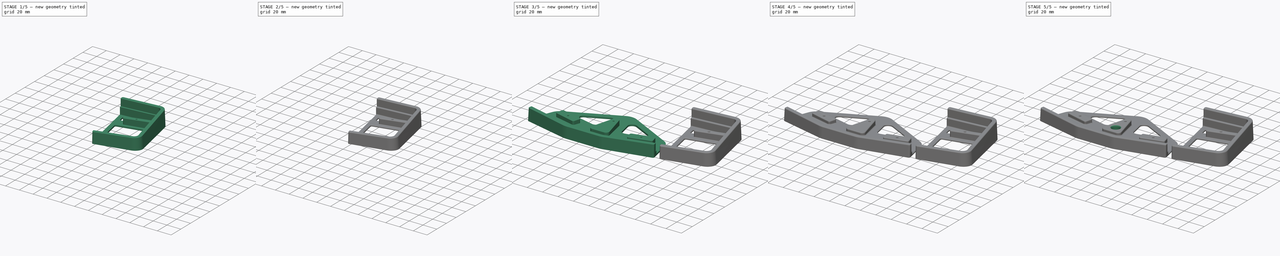
[diagram: build sequence overview — one tinted view per stage of 5, left to right]
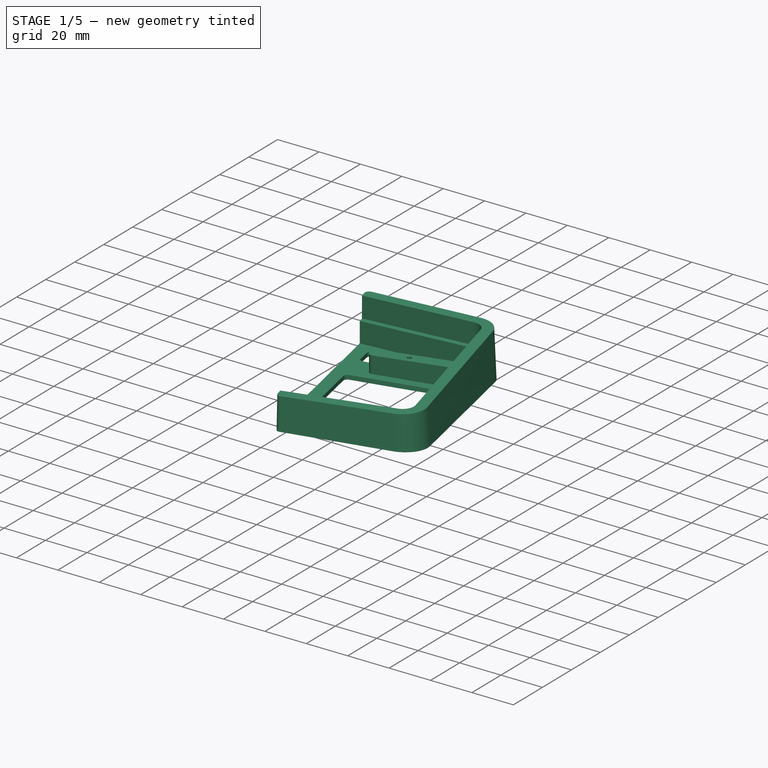
[diagram: stage 1 of 5 — iso view after this stage's code; geometry added in this stage tinted green]
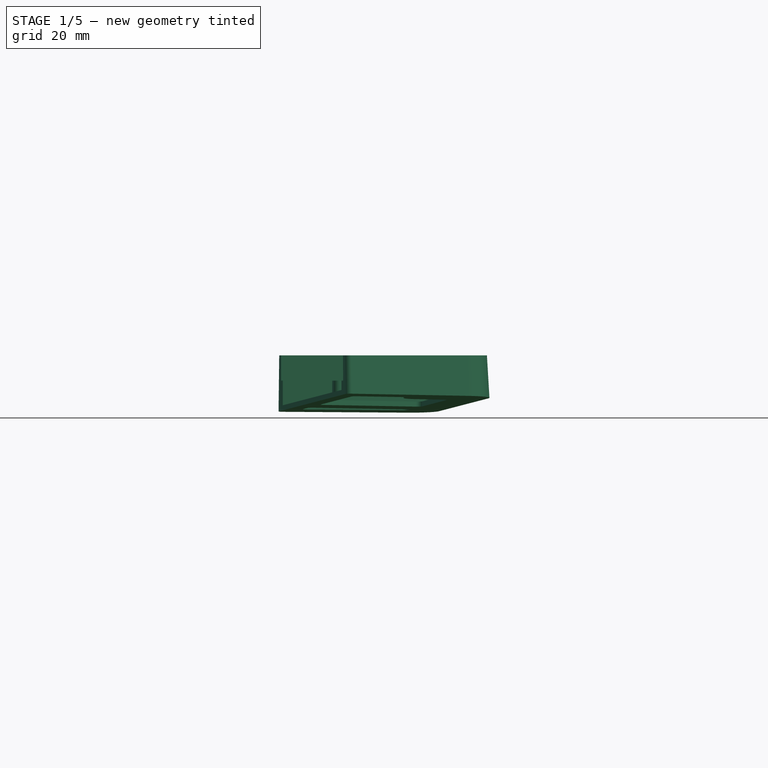
[diagram: stage 1 of 5 — front view after this stage's code; geometry added in this stage tinted green]
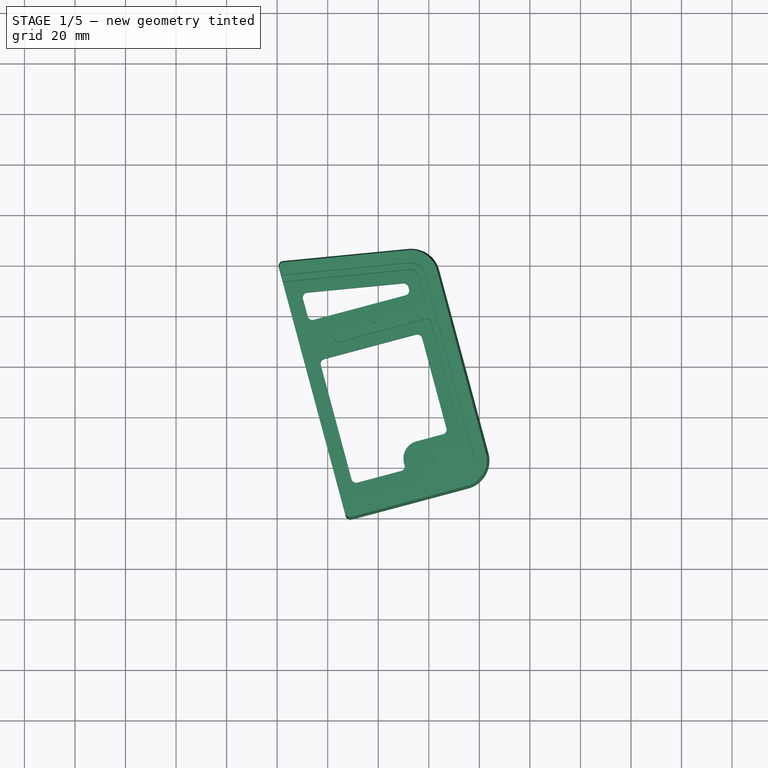
[diagram: stage 1 of 5 — top view after this stage's code; geometry added in this stage tinted green]
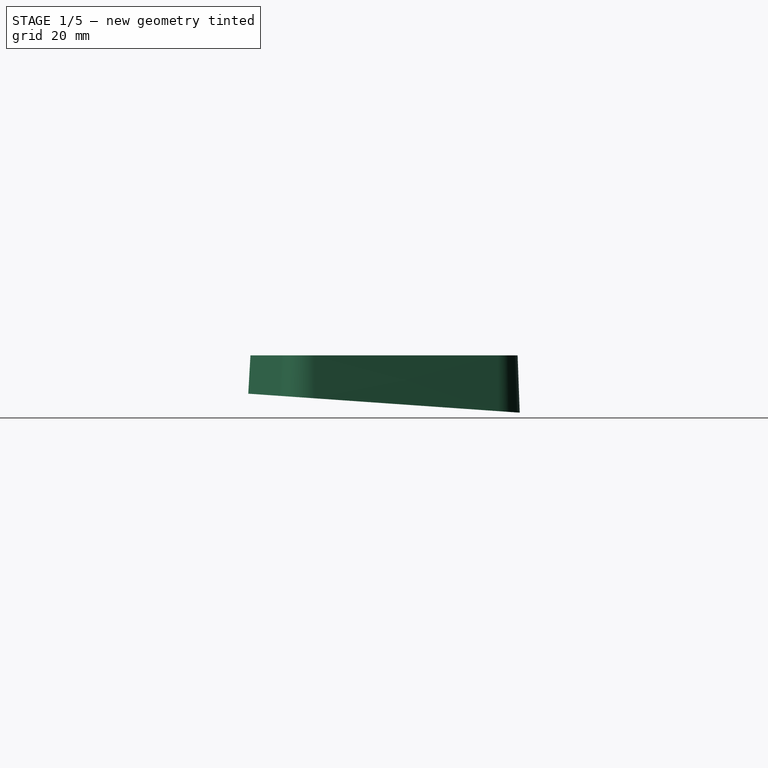
[diagram: stage 1 of 5 — right view after this stage's code; geometry added in this stage tinted green]
FCSTD DOCUMENT  (FreeCAD 0.20R)
Label: case.v6
License: All rights reserved
LicenseURL: http://en.wikipedia.org/wiki/All_rights_reserved
objects: Sketcher::SketchObject×14, PartDesign::Pocket×8, PartDesign::Fillet×7, PartDesign::AdditiveLoft×2, PartDesign::Hole×2, PartDesign::Chamfer×2, PartDesign::Body×2
note: 58 computed .brp shape members not serialized (recipe doc carries the construction recipe); baked Part::Feature solids carry a one-line shape summary decoded from their .brp

FEATURE [PartDesign::Body] Body  label="Body-in"
  Group = -> [Sketch,Sketch001,AdditiveLoft,Sketch002,Pocket,Sketch003,Pocket001,Sketch004,Pocket002,Fillet,Sketch005,Hole,Chamfer,Fillet001,Sketch006,Pocket003,Fillet002,Sketch007,Pocket004,Fillet003]
  Origin = -> Origin
  Placement = pos=(0,0,0) rot=(1,0,0;0.069813rad)
  Tip = -> Fillet003
FEATURE [Sketcher::SketchObject] Sketch008
  AttachmentOffset = pos=(0,0,0) rot=(1,0,0;-0.069813rad)
  FullyConstrained = false
  MapMode = 5
  Placement = pos=(0,0,0) rot=(1,0,0;6.21337rad)
  Support = -> [XY_Plane001]
  sketch-geometry (8):
    g0: LineSegment StartX=135.475 StartY=-28.2951 StartZ=0 EndX=89.5539 EndY=-40.5996 EndZ=0
    g1: ArcOfCircle CenterX=89.0363 CenterY=-38.6677 CenterZ=0 NormalX=0 NormalY=0 NormalZ=1 AngleXU=0 Radius=2 StartAngle=3.40339 EndAngle=4.97419
    g2: LineSegment StartX=60.6229 StartY=59.645 StartZ=0 EndX=87.1044 EndY=-39.1854 EndZ=0
    g3: LineSegment StartX=62.3618 StartY=62.1534 StartZ=0 EndX=111.909 EndY=66.9571 EndZ=0
    g4: ArcOfCircle CenterX=62.5548 CenterY=60.1627 CenterZ=0 NormalX=0 NormalY=0 NormalZ=1 AngleXU=0 Radius=2 StartAngle=1.66745 EndAngle=3.40339
    g5: ArcOfCircle CenterX=132.498 CenterY=-17.187 CenterZ=0 NormalX=0 NormalY=0 NormalZ=1 AngleXU=0 Radius=11.5 StartAngle=4.97419 EndAngle=6.54498
    g6: LineSegment StartX=124.127 StartY=58.4872 StartZ=0 EndX=143.606 EndY=-14.2106 EndZ=0
    g7: ArcOfCircle CenterX=113.019 CenterY=55.5108 CenterZ=0 NormalX=0 NormalY=0 NormalZ=1 AngleXU=0 Radius=11.5 StartAngle=0.261799 EndAngle=1.66745
  constraints (8):
    c: Coincident(g2,g4)
    c: Coincident(g3,g4)
    c: Coincident(g1,g2)
    c: Coincident(g0,g1)
    c: Coincident(g3,g7)
    c: Coincident(g6,g7)
    c: Coincident(g0,g5)
    c: Coincident(g5,g6)
FEATURE [Sketcher::SketchObject] Sketch009
  AttachmentOffset = pos=(0,0,18) rot=(0,0,1;0rad)
  FullyConstrained = false
  MapMode = 5
  Placement = pos=(0,0,18) rot=(0,0,1;0rad)
  Support = -> [XY_Plane001]
  sketch-geometry (8):
    g0: ArcOfCircle CenterX=113.019 CenterY=55.5108 CenterZ=0 NormalX=0 NormalY=0 NormalZ=1 AngleXU=0 Radius=10.5 StartAngle=0.261799 EndAngle=1.66745
    g1: LineSegment StartX=123.161 StartY=58.2284 StartZ=0 EndX=142.64 EndY=-14.4694 EndZ=0
    g2: ArcOfCircle CenterX=132.498 CenterY=-17.187 CenterZ=0 NormalX=0 NormalY=0 NormalZ=1 AngleXU=0 Radius=10.5 StartAngle=4.97419 EndAngle=6.54498
    g3: LineSegment StartX=62.6242 StartY=61.1741 StartZ=0 EndX=112.006 EndY=65.9618 EndZ=0
    g4: ArcOfCircle CenterX=62.8172 CenterY=59.1834 CenterZ=0 NormalX=0 NormalY=0 NormalZ=1 AngleXU=0 Radius=2 StartAngle=1.66745 EndAngle=3.40339
    g5: LineSegment StartX=135.216 StartY=-27.3292 StartZ=0 EndX=89.2951 EndY=-39.6336 EndZ=0
    g6: ArcOfCircle CenterX=88.7775 CenterY=-37.7018 CenterZ=0 NormalX=0 NormalY=0 NormalZ=1 AngleXU=0 Radius=2 StartAngle=3.40339 EndAngle=4.97419
    g7: LineSegment StartX=86.8456 StartY=-38.2194 StartZ=0 EndX=60.8853 EndY=58.6658 EndZ=0
FEATURE [PartDesign::AdditiveLoft] AdditiveLoft001
  Closed = true
  Profile = -> Sketch008
  Ruled = true
  Sections = -> [Sketch009]
FEATURE [Sketcher::SketchObject] Sketch010
  FullyConstrained = false
  MapMode = 5
  Placement = pos=(0,0,18) rot=(0,0,1;0rad)
  Support = -> [AdditiveLoft001]
  sketch-geometry (6):
    g0: ArcOfCircle CenterX=113.019 CenterY=55.5108 CenterZ=0 NormalX=0 NormalY=0 NormalZ=1 AngleXU=0 Radius=5.5 StartAngle=0.261799 EndAngle=1.66745
    g1: LineSegment StartX=118.332 StartY=56.9343 StartZ=0 EndX=137.811 EndY=-15.7635 EndZ=0
    g2: ArcOfCircle CenterX=132.498 CenterY=-17.187 CenterZ=0 NormalX=0 NormalY=0 NormalZ=1 AngleXU=0 Radius=5.5 StartAngle=4.97419 EndAngle=6.54498
    g3: LineSegment StartX=60.5771 StartY=55.9522 StartZ=0 EndX=112.488 EndY=60.9851 EndZ=0
    g4: LineSegment StartX=85.1032 StartY=-35.5805 StartZ=0 EndX=60.5771 EndY=55.9522 EndZ=0
    g5: LineSegment StartX=133.922 StartY=-22.4996 StartZ=0 EndX=85.1032 EndY=-35.5805 EndZ=0
  constraints (6):
    c: Coincident(g3,g4)
    c: Coincident(g4,g5)
    c: Coincident(g0,g3)
    c: Coincident(g0,g1)
    c: Coincident(g2,g5)
    c: Coincident(g1,g2)
FEATURE [PartDesign::Pocket] Pocket005
  BaseFeature = -> AdditiveLoft001
  Direction = (0,0,-1)
  Length = 10
  Length2 = 5
  Profile = -> Sketch010
  ReferenceAxis = -> Sketch010 [N_Axis]
  Type = 0
FEATURE [Sketcher::SketchObject] Sketch011
  FullyConstrained = false
  MapMode = 5
  Placement = pos=(0,0,8) rot=(0,0,1;0rad)
  Support = -> [Pocket005]
  sketch-geometry (20):
    g0: Circle CenterX=121.71 CenterY=-16.6741 CenterZ=0 NormalX=0 NormalY=0 NormalZ=-1 AngleXU=0 Radius=1.1
    g1: Circle CenterX=98.1026 CenterY=36.658 CenterZ=0 NormalX=0 NormalY=0 NormalZ=-1 AngleXU=0 Radius=1.1
    g2: ArcOfCircle CenterX=113.019 CenterY=55.5108 CenterZ=0 NormalX=0 NormalY=0 NormalZ=1 AngleXU=0 Radius=3 StartAngle=0.261799 EndAngle=1.66745
    g3: ArcOfCircle CenterX=114.61 CenterY=-23.0155 CenterZ=0 NormalX=0 NormalY=0 NormalZ=1 AngleXU=0 Radius=2 StartAngle=4.97419 EndAngle=6.54498
    g4: ArcOfCircle CenterX=83.7831 CenterY=33.8822 CenterZ=0 NormalX=0 NormalY=0 NormalZ=1 AngleXU=0 Radius=2 StartAngle=1.8326 EndAngle=3.40339
    g5: LineSegment StartX=82.3818 StartY=31.3845 StartZ=0 EndX=81.8512 EndY=33.3646 EndZ=0
    g6: ArcOfCircle CenterX=84.3137 CenterY=31.9021 CenterZ=0 NormalX=0 NormalY=0 NormalZ=1 AngleXU=0 Radius=2 StartAngle=3.40339 EndAngle=4.97419
    g7: ArcOfCircle CenterX=131.19 CenterY=-8.44011 CenterZ=0 NormalX=0 NormalY=0 NormalZ=1 AngleXU=0 Radius=2 StartAngle=4.97419 EndAngle=6.54498
    g8: LineSegment StartX=116.542 StartY=-22.4979 StartZ=0 EndX=115.044 EndY=-16.9076 EndZ=0
    g9: LineSegment StartX=116.458 StartY=-14.4581 StartZ=0 EndX=131.707 EndY=-10.372 EndZ=0
    g10: ArcOfCircle CenterX=116.975 CenterY=-16.3899 CenterZ=0 NormalX=0 NormalY=0 NormalZ=1 AngleXU=0 Radius=2 StartAngle=1.8326 EndAngle=3.40339
    g11: LineSegment StartX=83.2655 StartY=35.8141 StartZ=0 EndX=116.916 EndY=44.8307 EndZ=0
    g12: LineSegment StartX=115.917 StartY=56.2872 StartZ=0 EndX=118.33 EndY=47.2802 EndZ=0
    g13: ArcOfCircle CenterX=116.398 CenterY=46.7626 CenterZ=0 NormalX=0 NormalY=0 NormalZ=1 AngleXU=0 Radius=2 StartAngle=4.97419 EndAngle=6.54498
    g14: LineSegment StartX=118.482 StartY=38.9868 StartZ=0 EndX=84.8313 EndY=29.9702 EndZ=0
    g15: LineSegment StartX=120.931 StartY=37.5726 StartZ=0 EndX=133.122 EndY=-7.92247 EndZ=0
    g16: ArcOfCircle CenterX=118.999 CenterY=37.055 CenterZ=0 NormalX=0 NormalY=0 NormalZ=1 AngleXU=0 Radius=2 StartAngle=0.261799 EndAngle=1.8326
    g17: LineSegment StartX=84.4562 StartY=-33.1657 StartZ=0 EndX=61.2331 EndY=53.5041 EndZ=0
    g18: LineSegment StartX=61.2331 StartY=53.5041 StartZ=0 EndX=112.729 EndY=58.4968 EndZ=0
    g19: LineSegment StartX=115.127 StartY=-24.9473 StartZ=0 EndX=84.4562 EndY=-33.1657 EndZ=0
  constraints (18):
    c: Coincident(g17,g18)
    c: Coincident(g4,g5)
    c: Coincident(g5,g6)
    c: Coincident(g4,g11)
    c: Coincident(g17,g19)
    c: Coincident(g6,g14)
    c: Coincident(g2,g18)
    c: Coincident(g8,g10)
    c: Coincident(g3,g19)
    c: Coincident(g2,g12)
    c: Coincident(g9,g10)
    c: Coincident(g3,g8)
    c: Coincident(g11,g13)
    c: Coincident(g12,g13)
    c: Coincident(g14,g16)
    c: Coincident(g15,g16)
    c: Coincident(g7,g9)
    c: Coincident(g7,g15)
FEATURE [PartDesign::Pocket] Pocket006
  BaseFeature = -> Pocket005
  Direction = (0,0,-1)
  Length = 0
  Length2 = 5
  Offset = -2
  Profile = -> Sketch011
  ReferenceAxis = -> Sketch011 [N_Axis]
  Type = 3
  UpToFace = -> Pocket005 [Face1]
FEATURE [Sketcher::SketchObject] Sketch012
  FullyConstrained = false
  MapMode = 5
  Placement = pos=(0,0.139173,1.99027) rot=(-1,0,0;0.069813rad)
  Support = -> [Pocket006]
  sketch-geometry (20):
    g0: ArcOfCircle CenterX=116.975 CenterY=-16.3899 CenterZ=0 NormalX=0 NormalY=0 NormalZ=1 AngleXU=0 Radius=7 StartAngle=1.8326 EndAngle=3.40339
    g1: ArcOfCircle CenterX=110.275 CenterY=50.2981 CenterZ=0 NormalX=0 NormalY=0 NormalZ=1 AngleXU=0 Radius=2 StartAngle=4.97419 EndAngle=6.54498
    g2: LineSegment StartX=111.964 StartY=51.7201 StartZ=0 EndX=112.206 EndY=50.8157 EndZ=0
    g3: ArcOfCircle CenterX=110.032 CenterY=51.2025 CenterZ=0 NormalX=0 NormalY=0 NormalZ=1 AngleXU=0 Radius=2 StartAngle=0.261799 EndAngle=1.66745
    g4: LineSegment StartX=110.418 StartY=-18.9623 StartZ=0 EndX=110.214 EndY=-18.2017 EndZ=0
    g5: ArcOfCircle CenterX=108.486 CenterY=-19.48 CenterZ=0 NormalX=0 NormalY=0 NormalZ=1 AngleXU=0 Radius=2 StartAngle=4.97419 EndAngle=6.54498
    g6: LineSegment StartX=115.164 StartY=-9.62844 StartZ=0 EndX=125.584 EndY=-6.83643 EndZ=0
    g7: ArcOfCircle CenterX=125.066 CenterY=-4.90458 CenterZ=0 NormalX=0 NormalY=0 NormalZ=1 AngleXU=0 Radius=2 StartAngle=4.97419 EndAngle=6.54498
    g8: LineSegment StartX=117.396 StartY=31.4489 StartZ=0 EndX=126.998 EndY=-4.38694 EndZ=0
    g9: ArcOfCircle CenterX=115.464 CenterY=30.9313 CenterZ=0 NormalX=0 NormalY=0 NormalZ=1 AngleXU=0 Radius=2 StartAngle=0.261799 EndAngle=1.8326
    g10: LineSegment StartX=71.9584 StartY=49.5205 StartZ=0 EndX=109.839 EndY=53.1931 EndZ=0
    g11: ArcOfCircle CenterX=72.1514 CenterY=47.5298 CenterZ=0 NormalX=0 NormalY=0 NormalZ=1 AngleXU=0 Radius=2 StartAngle=1.66745 EndAngle=3.40339
    g12: LineSegment StartX=72.0812 StartY=40.0642 StartZ=0 EndX=70.2195 EndY=47.0122 EndZ=0
    g13: LineSegment StartX=74.5307 StartY=38.65 StartZ=0 EndX=110.792 EndY=48.3662 EndZ=0
    g14: ArcOfCircle CenterX=74.0131 CenterY=40.5819 CenterZ=0 NormalX=0 NormalY=0 NormalZ=1 AngleXU=0 Radius=2 StartAngle=3.40339 EndAngle=4.97419
    g15: LineSegment StartX=114.946 StartY=32.8631 StartZ=0 EndX=78.6848 EndY=23.1469 EndZ=0
    g16: ArcOfCircle CenterX=79.2024 CenterY=21.215 CenterZ=0 NormalX=0 NormalY=0 NormalZ=1 AngleXU=0 Radius=2 StartAngle=1.8326 EndAngle=3.40339
    g17: LineSegment StartX=109.004 StartY=-21.4118 StartZ=0 EndX=91.8554 EndY=-26.0067 EndZ=0
    g18: LineSegment StartX=89.4059 StartY=-24.5924 StartZ=0 EndX=77.2706 EndY=20.6974 EndZ=0
    g19: ArcOfCircle CenterX=91.3378 CenterY=-24.0748 CenterZ=0 NormalX=0 NormalY=0 NormalZ=1 AngleXU=0 Radius=2 StartAngle=3.40339 EndAngle=4.97419
  constraints (20):
    c: Coincident(g11,g12)
    c: Coincident(g10,g11)
    c: Coincident(g12,g14)
    c: Coincident(g13,g14)
    c: Coincident(g16,g18)
    c: Coincident(g15,g16)
    c: Coincident(g18,g19)
    c: Coincident(g17,g19)
    c: Coincident(g5,g17)
    c: Coincident(g3,g10)
    c: Coincident(g0,g4)
    c: Coincident(g4,g5)
    c: Coincident(g1,g13)
    c: Coincident(g2,g3)
    c: Coincident(g1,g2)
    c: Coincident(g9,g15)
    c: Coincident(g0,g6)
    c: Coincident(g8,g9)
    c: Coincident(g6,g7)
    c: Coincident(g7,g8)
FEATURE [PartDesign::Pocket] Pocket007
  BaseFeature = -> Pocket006
  Direction = (0,-0.0697565,-0.997564)
  Length = 5
  Length2 = 5
  Profile = -> Sketch012
  ReferenceAxis = -> Sketch012 [N_Axis]
  Type = 1
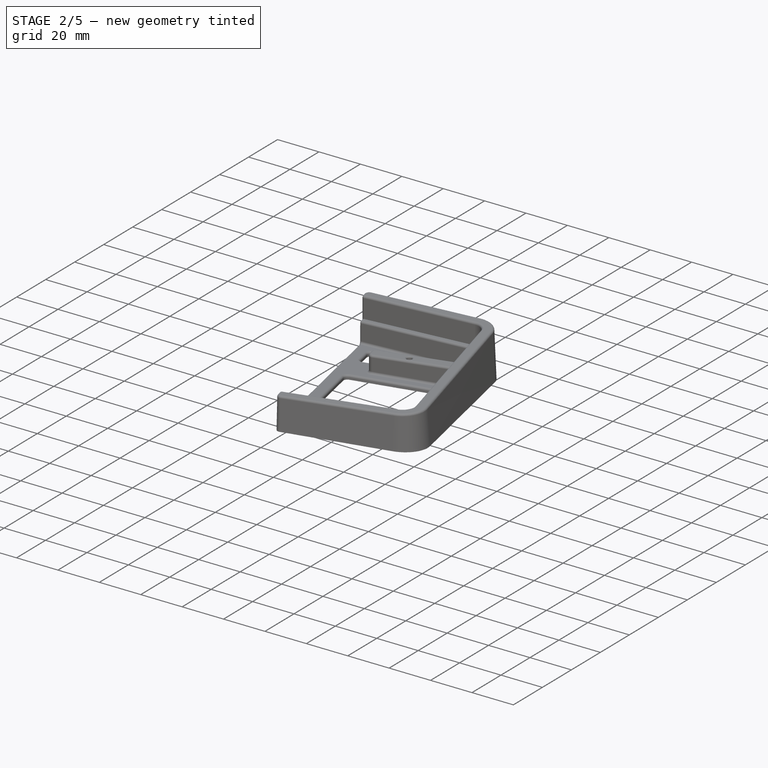
[diagram: stage 2 of 5 — iso view after this stage's code; geometry added in this stage tinted green]
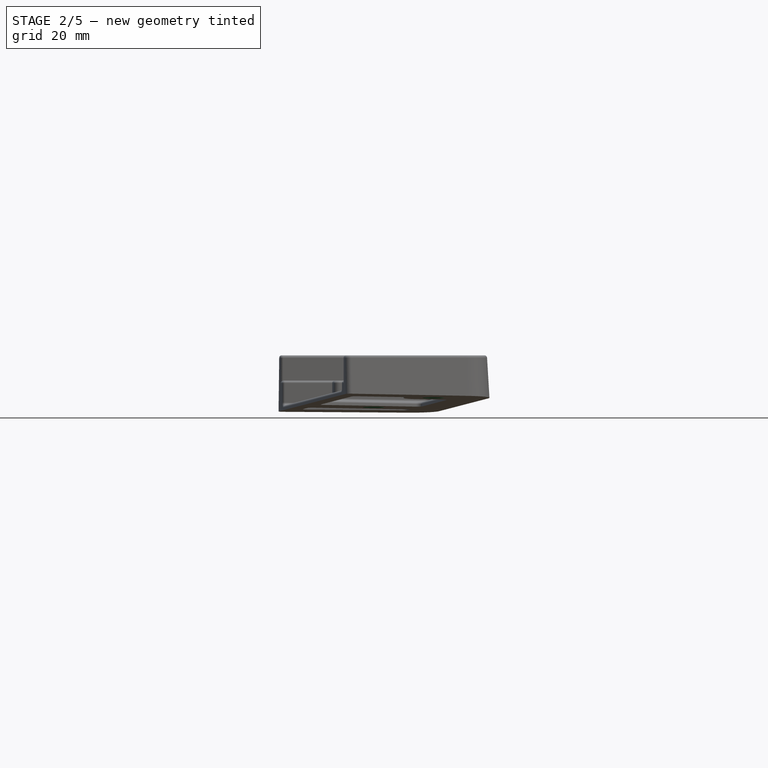
[diagram: stage 2 of 5 — front view after this stage's code; geometry added in this stage tinted green]
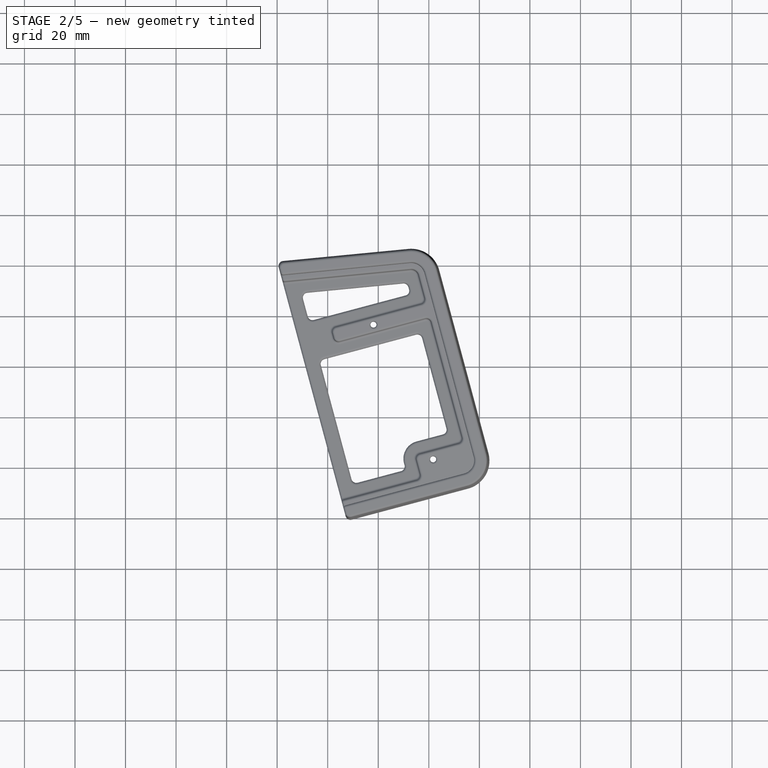
[diagram: stage 2 of 5 — top view after this stage's code; geometry added in this stage tinted green]
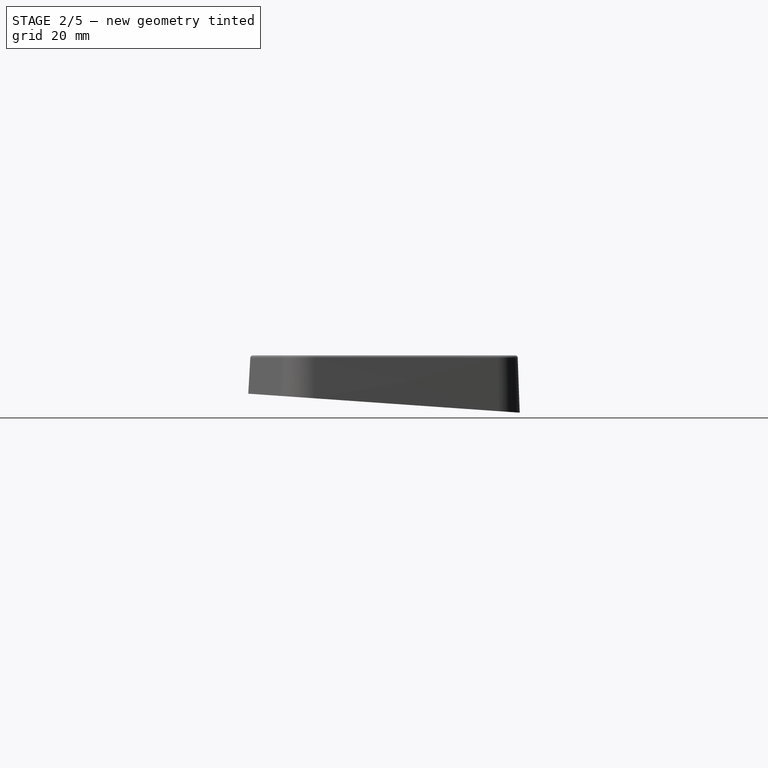
[diagram: stage 2 of 5 — right view after this stage's code; geometry added in this stage tinted green]
FEATURE [Sketcher::SketchObject] Sketch013
  ExternalGeometry = -> [Sketch011]
  FullyConstrained = true
  MapMode = 5
  Placement = pos=(0,0,8) rot=(0,0,1;0rad)
  Support = -> [Pocket005]
  sketch-geometry (2):
    g0: Circle CenterX=98.1026 CenterY=36.658 CenterZ=0 NormalX=0 NormalY=0 NormalZ=1 AngleXU=0 Radius=1.1
    g1: Circle CenterX=121.71 CenterY=-16.6741 CenterZ=0 NormalX=0 NormalY=0 NormalZ=1 AngleXU=0 Radius=1.1
  constraints (4):
    c: Coincident(g0,g-3)
    c: Coincident(g1,g-4)
    c: Equal(g0,g1)
    c: Diameter(g0) = 2.2
FEATURE [PartDesign::Hole] Hole001
  BaseFeature = -> Pocket007
  CustomThreadClearance = 0
  Depth = 278.451
  DepthType = 1
  Diameter = 2.42
  DrillForDepth = false
  DrillPoint = 1
  DrillPointAngle = 118
  HoleCutCountersinkAngle = 90
  HoleCutCustomValues = false
  HoleCutDepth = 0
  HoleCutDiameter = 6.1
  HoleCutType = 0
  ModelThread = false
  Profile = -> Sketch013
  Tapered = false
  TaperedAngle = 90
  ThreadClass = 0
  ThreadDepth = 278.451
  ThreadDepthType = 0
  ThreadDirection = 0
  ThreadFit = 0
  ThreadSize = 7
  ThreadType = 1
  Threaded = false
  UseCustomThreadClearance = false
FEATURE [PartDesign::Chamfer] Chamfer001
  Angle = 45
  Base = -> Hole001 [Edge22,Edge9]
  BaseFeature = -> Hole001
  ChamferType = 0
  FlipDirection = false
  Size = 3
  Size2 = 1
  SupportTransform = false
  UseAllEdges = false
FEATURE [PartDesign::Fillet] Fillet004
  Base = -> Chamfer001 [Face33,Edge49,Edge48,Edge47,Edge112,Face37,Edge45,Edge44,Edge43]
  BaseFeature = -> Chamfer001
  Radius = 1
  SupportTransform = false
  UseAllEdges = false
FEATURE [PartDesign::Fillet] Fillet005
  Base = -> Fillet004 [Edge160,Edge202]
  BaseFeature = -> Fillet004
  Radius = 0.75
  SupportTransform = false
  UseAllEdges = false
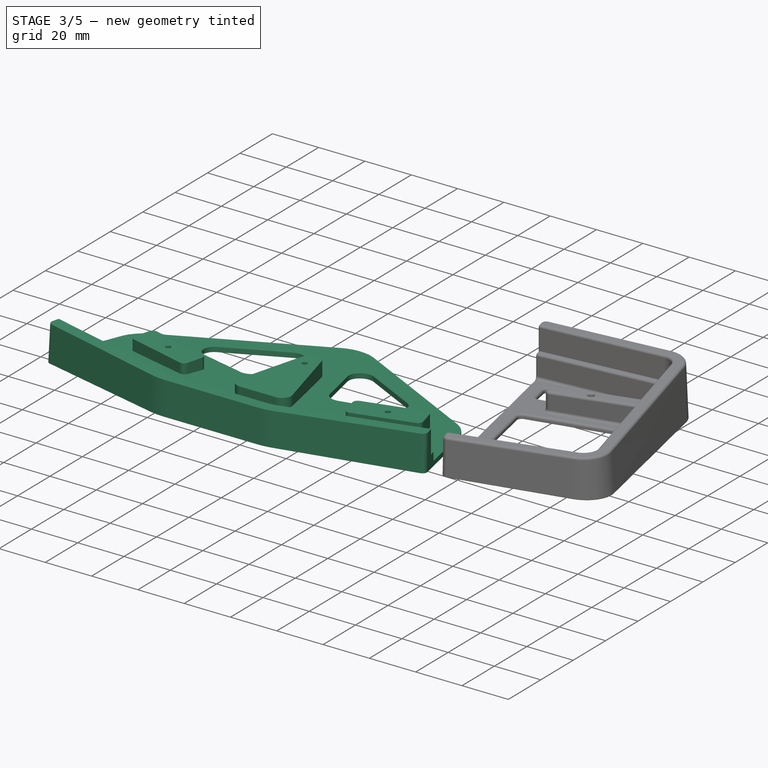
[diagram: stage 3 of 5 — iso view after this stage's code; geometry added in this stage tinted green]
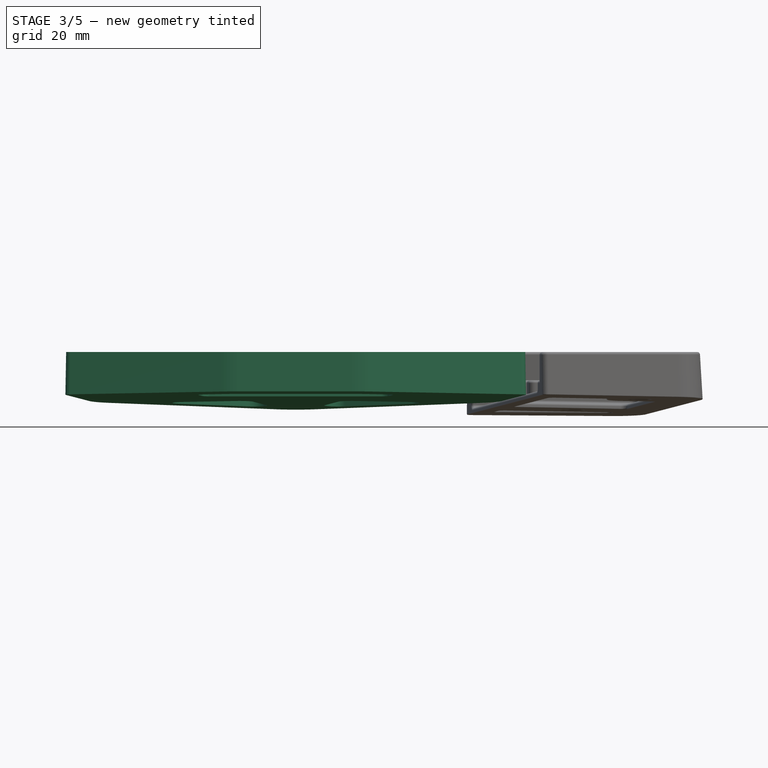
[diagram: stage 3 of 5 — front view after this stage's code; geometry added in this stage tinted green]
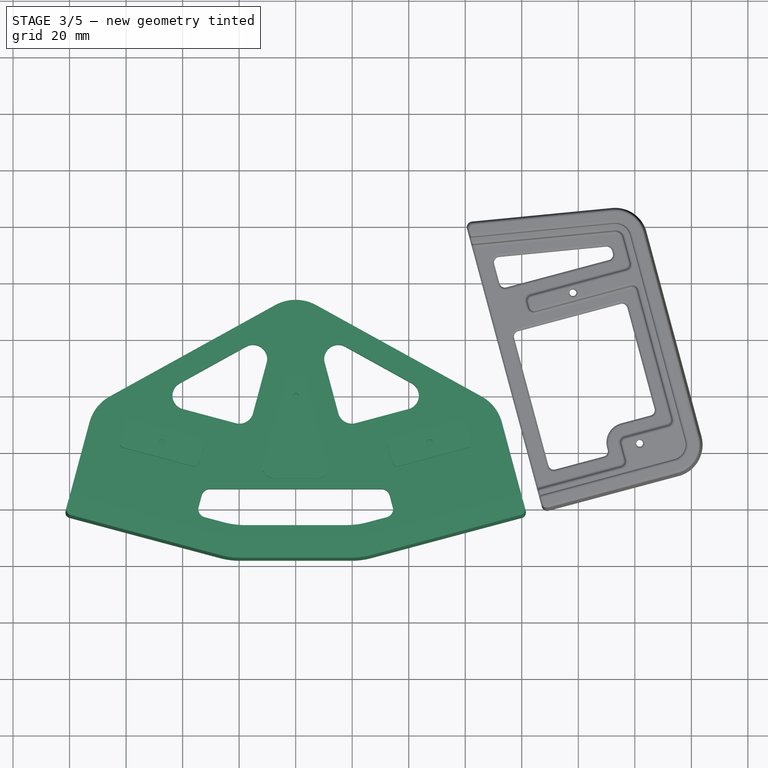
[diagram: stage 3 of 5 — top view after this stage's code; geometry added in this stage tinted green]
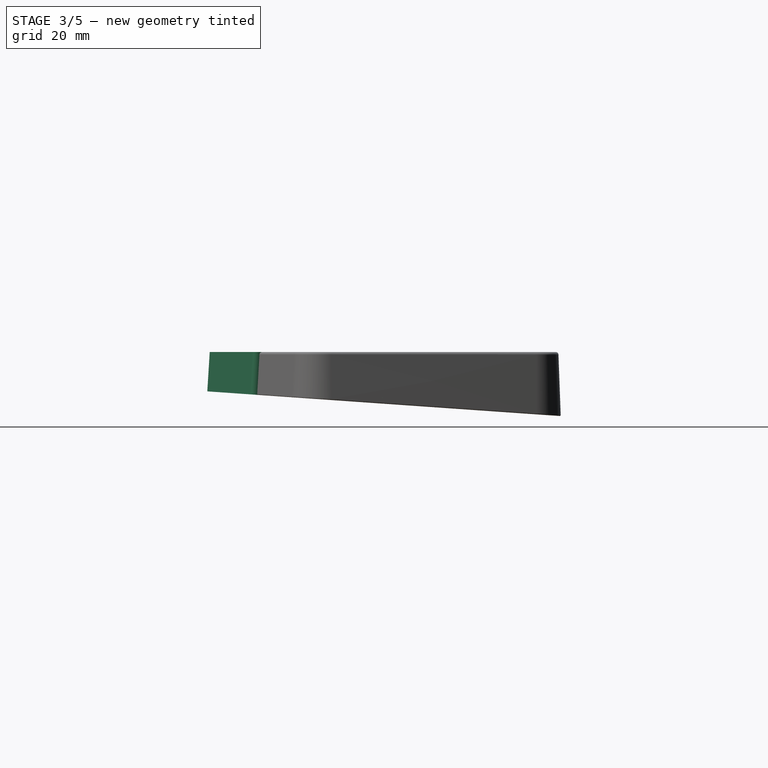
[diagram: stage 3 of 5 — right view after this stage's code; geometry added in this stage tinted green]
FEATURE [Sketcher::SketchObject] Sketch
  AttachmentOffset = pos=(0,0,0) rot=(1,0,0;-0.069813rad)
  FullyConstrained = false
  MapMode = 5
  Placement = pos=(0,0,0) rot=(1,0,0;6.21337rad)
  Support = -> [XY_Plane]
  sketch-geometry (14):
    g0: LineSegment StartX=-79.9943 StartY=-43.1611 StartZ=0 EndX=-26.7025 EndY=-57.4406 EndZ=0
    g1: ArcOfCircle CenterX=-79.4766 CenterY=-41.2292 CenterZ=0 NormalX=0 NormalY=0 NormalZ=1 AngleXU=0 Radius=2 StartAngle=2.87979 EndAngle=4.45059
    g2: LineSegment StartX=79.9943 StartY=-43.1611 StartZ=0 EndX=26.7025 EndY=-57.4406 EndZ=0
    g3: ArcOfCircle CenterX=79.4766 CenterY=-41.2292 CenterZ=0 NormalX=0 NormalY=0 NormalZ=1 AngleXU=0 Radius=2 StartAngle=4.97419 EndAngle=6.54498
    g4: ArcOfCircle CenterX=-19.8438 CenterY=-31.8435 CenterZ=0 NormalX=0 NormalY=0 NormalZ=1 AngleXU=0 Radius=26.5 StartAngle=4.45059 EndAngle=4.71239
    g5: LineSegment StartX=-19.8438 StartY=-58.3435 StartZ=0 EndX=19.8438 EndY=-58.3435 EndZ=0
    g6: ArcOfCircle CenterX=19.8438 CenterY=-31.8435 CenterZ=0 NormalX=0 NormalY=0 NormalZ=1 AngleXU=0 Radius=26.5 StartAngle=4.71239 EndAngle=4.97419
    g7: ArcOfCircle CenterX=-7.1e-15 CenterY=19.3094 CenterZ=0 NormalX=0 NormalY=0 NormalZ=1 AngleXU=0 Radius=15 StartAngle=1.06469 EndAngle=2.0769
    g8: LineSegment StartX=7.27161 StartY=32.4289 StartZ=0 EndX=65.7537 EndY=0.0149094 EndZ=0
    g9: LineSegment StartX=81.4085 StartY=-40.7116 StartZ=0 EndX=72.971 EndY=-9.2224 EndZ=0
    g10: ArcOfCircle CenterX=58.4821 CenterY=-13.1047 CenterZ=0 NormalX=0 NormalY=0 NormalZ=1 AngleXU=0 Radius=15 StartAngle=0.261799 EndAngle=1.06469
    g11: LineSegment StartX=-65.7537 StartY=0.0149094 StartZ=0 EndX=-7.27161 EndY=32.4289 EndZ=0
    g12: LineSegment StartX=-81.4085 StartY=-40.7116 StartZ=0 EndX=-72.971 EndY=-9.2224 EndZ=0
    g13: ArcOfCircle CenterX=-58.4821 CenterY=-13.1047 CenterZ=0 NormalX=0 NormalY=0 NormalZ=1 AngleXU=0 Radius=15 StartAngle=2.0769 EndAngle=2.87979
  constraints (14):
    c: Coincident(g1,g12)
    c: Coincident(g0,g1)
    c: Coincident(g12,g13)
    c: Coincident(g11,g13)
    c: Coincident(g0,g4)
    c: Coincident(g4,g5)
    c: Coincident(g7,g11)
    c: Coincident(g7,g8)
    c: Coincident(g5,g6)
    c: Coincident(g2,g6)
    c: Coincident(g8,g10)
    c: Coincident(g9,g10)
    c: Coincident(g2,g3)
    c: Coincident(g3,g9)
FEATURE [Sketcher::SketchObject] Sketch001
  AttachmentOffset = pos=(0,0,18) rot=(0,0,1;0rad)
  FullyConstrained = false
  MapMode = 5
  Placement = pos=(0,0,18) rot=(0,0,1;0rad)
  Support = -> [XY_Plane]
  sketch-geometry (14):
    g0: LineSegment StartX=-79.7355 StartY=-42.1951 StartZ=0 EndX=-26.4437 EndY=-56.4746 EndZ=0
    g1: ArcOfCircle CenterX=-79.2178 CenterY=-40.2633 CenterZ=0 NormalX=0 NormalY=0 NormalZ=1 AngleXU=0 Radius=2 StartAngle=2.87979 EndAngle=4.45059
    g2: LineSegment StartX=-81.1497 StartY=-39.7457 StartZ=0 EndX=-72.971 EndY=-9.2224 EndZ=0
    g3: ArcOfCircle CenterX=-58.4821 CenterY=-13.1047 CenterZ=0 NormalX=0 NormalY=0 NormalZ=1 AngleXU=0 Radius=15 StartAngle=2.0769 EndAngle=2.87979
    g4: LineSegment StartX=79.7355 StartY=-42.1951 StartZ=0 EndX=26.4437 EndY=-56.4746 EndZ=0
    g5: ArcOfCircle CenterX=79.2178 CenterY=-40.2633 CenterZ=0 NormalX=0 NormalY=0 NormalZ=1 AngleXU=0 Radius=2 StartAngle=4.97419 EndAngle=6.54498
    g6: LineSegment StartX=81.1497 StartY=-39.7457 StartZ=0 EndX=72.971 EndY=-9.2224 EndZ=0
    g7: ArcOfCircle CenterX=58.4821 CenterY=-13.1047 CenterZ=0 NormalX=0 NormalY=0 NormalZ=1 AngleXU=0 Radius=15 StartAngle=0.261799 EndAngle=1.06469
    g8: ArcOfCircle CenterX=-19.8438 CenterY=-31.8435 CenterZ=0 NormalX=0 NormalY=0 NormalZ=1 AngleXU=0 Radius=25.5 StartAngle=4.45059 EndAngle=4.71239
    g9: LineSegment StartX=-19.8438 StartY=-57.3435 StartZ=0 EndX=19.8438 EndY=-57.3435 EndZ=0
    g10: ArcOfCircle CenterX=19.8438 CenterY=-31.8435 CenterZ=0 NormalX=0 NormalY=0 NormalZ=1 AngleXU=0 Radius=25.5 StartAngle=4.71239 EndAngle=4.97419
    g11: LineSegment StartX=65.7537 StartY=0.0149094 StartZ=0 EndX=7.27161 EndY=32.4289 EndZ=0
    g12: LineSegment StartX=-65.7537 StartY=0.0149094 StartZ=0 EndX=-7.27161 EndY=32.4289 EndZ=0
    g13: ArcOfCircle CenterX=7.1e-15 CenterY=19.3094 CenterZ=0 NormalX=0 NormalY=0 NormalZ=1 AngleXU=0 Radius=15 StartAngle=1.06469 EndAngle=2.0769
  constraints (14):
    c: Coincident(g1,g2)
    c: Coincident(g0,g1)
    c: Coincident(g2,g3)
    c: Coincident(g3,g12)
    c: Coincident(g0,g8)
    c: Coincident(g8,g9)
    c: Coincident(g12,g13)
    c: Coincident(g11,g13)
    c: Coincident(g9,g10)
    c: Coincident(g4,g10)
    c: Coincident(g7,g11)
    c: Coincident(g6,g7)
    c: Coincident(g4,g5)
    c: Coincident(g5,g6)
FEATURE [PartDesign::AdditiveLoft] AdditiveLoft
  Closed = true
  Profile = -> Sketch
  Ruled = true
  Sections = -> [Sketch001]
FEATURE [Sketcher::SketchObject] Sketch002
  FullyConstrained = false
  MapMode = 5
  Placement = pos=(0,0,18) rot=(0,0,1;0rad)
  Support = -> [AdditiveLoft]
  sketch-geometry (8):
    g0: LineSegment StartX=-81.3391 StartY=-36.5891 StartZ=0 EndX=-58.1377 EndY=50 EndZ=0
    g1: LineSegment StartX=-81.3391 StartY=-36.5891 StartZ=0 EndX=-25.1496 EndY=-51.645 EndZ=0
    g2: ArcOfCircle CenterX=-19.8438 CenterY=-31.8435 CenterZ=0 NormalX=0 NormalY=0 NormalZ=1 AngleXU=0 Radius=20.5 StartAngle=4.45059 EndAngle=4.71239
    g3: LineSegment StartX=-19.8438 StartY=-52.3435 StartZ=0 EndX=19.8438 EndY=-52.3435 EndZ=0
    g4: LineSegment StartX=81.3391 StartY=-36.5891 StartZ=0 EndX=58.1377 EndY=50 EndZ=0
    g5: LineSegment StartX=81.3391 StartY=-36.5891 StartZ=0 EndX=25.1496 EndY=-51.645 EndZ=0
    g6: ArcOfCircle CenterX=19.8438 CenterY=-31.8435 CenterZ=0 NormalX=0 NormalY=0 NormalZ=1 AngleXU=0 Radius=20.5 StartAngle=4.71239 EndAngle=4.97419
    g7: LineSegment StartX=-58.1377 StartY=50 StartZ=0 EndX=58.1377 EndY=50 EndZ=0
  constraints (8):
    c: Coincident(g0,g1)
    c: Coincident(g0,g7)
    c: Coincident(g1,g2)
    c: Coincident(g2,g3)
    c: Coincident(g3,g6)
    c: Coincident(g5,g6)
    c: Coincident(g4,g7)
    c: Coincident(g4,g5)
FEATURE [PartDesign::Pocket] Pocket
  BaseFeature = -> AdditiveLoft
  Direction = (0,0,-1)
  Length = 10
  Length2 = 5
  Profile = -> Sketch002
  ReferenceAxis = -> Sketch002 [N_Axis]
  Type = 0
FEATURE [Sketcher::SketchObject] Sketch003
  FullyConstrained = false
  MapMode = 5
  Placement = pos=(0,0,8) rot=(0,0,1;0rad)
  Support = -> [Pocket]
  sketch-geometry (33):
    g0: Circle CenterX=47.4001 CenterY=-16.3717 CenterZ=0 NormalX=0 NormalY=0 NormalZ=-1 AngleXU=0 Radius=1.1
    g1: Circle CenterX=0 CenterY=0 CenterZ=0 NormalX=0 NormalY=0 NormalZ=-1 AngleXU=0 Radius=1.1
    g2: ArcOfCircle CenterX=58.6716 CenterY=-9.94809 CenterZ=0 NormalX=0 NormalY=0 NormalZ=1 AngleXU=0 Radius=2 StartAngle=0.261799 EndAngle=1.8326
    g3: LineSegment StartX=62.3052 StartY=-15.7814 StartZ=0 EndX=60.6034 EndY=-9.43045 EndZ=0
    g4: ArcOfCircle CenterX=60.3733 CenterY=-16.299 CenterZ=0 NormalX=0 NormalY=0 NormalZ=1 AngleXU=0 Radius=2 StartAngle=4.97419 EndAngle=6.54498
    g5: LineSegment StartX=60.8909 StartY=-18.2309 StartZ=0 EndX=36.6462 EndY=-24.7273 EndZ=0
    g6: ArcOfCircle CenterX=36.1286 CenterY=-22.7954 CenterZ=0 NormalX=0 NormalY=0 NormalZ=1 AngleXU=0 Radius=2 StartAngle=3.40339 EndAngle=4.97419
    g7: LineSegment StartX=32.495 StartY=-16.9621 StartZ=0 EndX=34.1967 EndY=-23.313 EndZ=0
    g8: LineSegment StartX=58.1539 StartY=-8.01623 StartZ=0 EndX=33.9092 EndY=-14.5126 EndZ=0
    g9: ArcOfCircle CenterX=34.4268 CenterY=-16.4444 CenterZ=0 NormalX=0 NormalY=0 NormalZ=1 AngleXU=0 Radius=2 StartAngle=1.8326 EndAngle=3.40339
    g10: ArcOfCircle CenterX=9e-15 CenterY=3.85454 CenterZ=0 NormalX=0 NormalY=0 NormalZ=1 AngleXU=0 Radius=4 StartAngle=0.261799 EndAngle=2.87979
    g11: LineSegment StartX=3.8637 StartY=4.88982 StartZ=0 EndX=11.5953 EndY=-23.9647 EndZ=0
    g12: ArcOfCircle CenterX=7.73155 CenterY=-25 CenterZ=0 NormalX=0 NormalY=0 NormalZ=1 AngleXU=0 Radius=4 StartAngle=4.71239 EndAngle=6.54498
    g13: LineSegment StartX=-7.73155 StartY=-29 StartZ=0 EndX=7.73155 EndY=-29 EndZ=0
    g14: LineSegment StartX=-3.8637 StartY=4.88982 StartZ=0 EndX=-11.5953 EndY=-23.9647 EndZ=0
    g15: ArcOfCircle CenterX=-7.73155 CenterY=-25 CenterZ=0 NormalX=0 NormalY=0 NormalZ=1 AngleXU=0 Radius=4 StartAngle=2.87979 EndAngle=4.71239
    g16: Circle CenterX=-47.4001 CenterY=-16.3717 CenterZ=0 NormalX=0 NormalY=0 NormalZ=-1 AngleXU=0 Radius=1.1
    g17: ArcOfCircle CenterX=-58.6716 CenterY=-9.94809 CenterZ=0 NormalX=0 NormalY=0 NormalZ=1 AngleXU=0 Radius=2 StartAngle=1.309 EndAngle=2.87979
    g18: LineSegment StartX=-62.3052 StartY=-15.7814 StartZ=0 EndX=-60.6034 EndY=-9.43045 EndZ=0
    g19: ArcOfCircle CenterX=-60.3733 CenterY=-16.299 CenterZ=0 NormalX=0 NormalY=0 NormalZ=1 AngleXU=0 Radius=2 StartAngle=2.87979 EndAngle=4.45059
    g20: LineSegment StartX=-60.8909 StartY=-18.2309 StartZ=0 EndX=-36.6462 EndY=-24.7273 EndZ=0
    g21: ArcOfCircle CenterX=-36.1286 CenterY=-22.7954 CenterZ=0 NormalX=0 NormalY=0 NormalZ=1 AngleXU=0 Radius=2 StartAngle=4.45059 EndAngle=6.02139
    g22: LineSegment StartX=-32.495 StartY=-16.9621 StartZ=0 EndX=-34.1967 EndY=-23.313 EndZ=0
    g23: LineSegment StartX=-58.1539 StartY=-8.01623 StartZ=0 EndX=-33.9092 EndY=-14.5126 EndZ=0
    g24: ArcOfCircle CenterX=-34.4268 CenterY=-16.4444 CenterZ=0 NormalX=0 NormalY=0 NormalZ=1 AngleXU=0 Radius=2 StartAngle=6.02139 EndAngle=7.59218
    g25: ArcOfCircle CenterX=19.8438 CenterY=-31.8435 CenterZ=0 NormalX=0 NormalY=0 NormalZ=1 AngleXU=0 Radius=18 StartAngle=4.71239 EndAngle=4.97419
    g26: LineSegment StartX=-19.8438 StartY=-49.8435 StartZ=0 EndX=19.8438 EndY=-49.8435 EndZ=0
    g27: ArcOfCircle CenterX=-19.8438 CenterY=-31.8435 CenterZ=0 NormalX=0 NormalY=0 NormalZ=1 AngleXU=0 Radius=18 StartAngle=4.45059 EndAngle=4.71239
    g28: LineSegment StartX=80.6921 StartY=-34.1742 StartZ=0 EndX=24.5026 EndY=-49.2302 EndZ=0
    g29: LineSegment StartX=-80.6921 StartY=-34.1742 StartZ=0 EndX=-24.5026 EndY=-49.2302 EndZ=0
    g30: LineSegment StartX=80.6921 StartY=-34.1742 StartZ=0 EndX=58.1377 EndY=50 EndZ=0
    g31: LineSegment StartX=-80.6921 StartY=-34.1742 StartZ=0 EndX=-58.1377 EndY=50 EndZ=0
    g32: LineSegment StartX=-58.1377 StartY=50 StartZ=0 EndX=58.1377 EndY=50 EndZ=0
  constraints (30):
    c: Coincident(g29,g31)
    c: Coincident(g18,g19)
    c: Coincident(g19,g20)
    c: Coincident(g17,g18)
    c: Coincident(g17,g23)
    c: Coincident(g31,g32)
    c: Coincident(g20,g21)
    c: Coincident(g21,g22)
    c: Coincident(g23,g24)
    c: Coincident(g22,g24)
    c: Coincident(g27,g29)
    c: Coincident(g26,g27)
    c: Coincident(g14,g15)
    c: Coincident(g13,g15)
    c: Coincident(g10,g14)
    c: Coincident(g10,g11)
    c: Coincident(g12,g13)
    c: Coincident(g11,g12)
    c: Coincident(g25,g26)
    c: Coincident(g25,g28)
    c: Coincident(g7,g9)
    c: Coincident(g8,g9)
    c: Coincident(g6,g7)
    c: Coincident(g5,g6)
    c: Coincident(g30,g32)
    c: Coincident(g2,g8)
    c: Coincident(g2,g3)
    c: Coincident(g4,g5)
    c: Coincident(g3,g4)
    c: Coincident(g28,g30)
FEATURE [PartDesign::Pocket] Pocket001
  BaseFeature = -> Pocket
  Direction = (0,0,-1)
  Length = 0
  Length2 = 5
  Offset = -2
  Profile = -> Sketch003
  ReferenceAxis = -> Sketch003 [N_Axis]
  Type = 3
  UpToFace = -> Pocket [Face1]
FEATURE [Sketcher::SketchObject] Sketch004
  FullyConstrained = false
  MapMode = 5
  Placement = pos=(0,0.139173,1.99027) rot=(-1,0,0;0.069813rad)
  Support = -> [Pocket001]
  sketch-geometry (24):
    g0: ArcOfCircle CenterX=-15.0864 CenterY=13.2343 CenterZ=0 NormalX=0 NormalY=0 NormalZ=1 AngleXU=0 Radius=5 StartAngle=6.02139 EndAngle=8.36009
    g1: LineSegment StartX=-41.0225 StartY=4.57572 StartZ=0 EndX=-17.5103 EndY=17.6075 EndZ=0
    g2: ArcOfCircle CenterX=-38.5986 CenterY=0.20252 CenterZ=0 NormalX=0 NormalY=0 NormalZ=1 AngleXU=0 Radius=5 StartAngle=2.0769 EndAngle=4.45059
    g3: LineSegment StartX=-39.8927 StartY=-4.62711 StartZ=0 EndX=-21.2135 EndY=-9.6322 EndZ=0
    g4: LineSegment StartX=-10.2568 StartY=11.9402 StartZ=0 EndX=-15.0897 EndY=-6.09666 EndZ=0
    g5: ArcOfCircle CenterX=-19.9194 CenterY=-4.80257 CenterZ=0 NormalX=0 NormalY=0 NormalZ=1 AngleXU=0 Radius=5 StartAngle=4.45059 EndAngle=6.02139
    g6: ArcOfCircle CenterX=15.0864 CenterY=13.2343 CenterZ=0 NormalX=0 NormalY=0 NormalZ=1 AngleXU=0 Radius=5 StartAngle=1.06469 EndAngle=3.40339
    g7: LineSegment StartX=41.0225 StartY=4.57572 StartZ=0 EndX=17.5103 EndY=17.6075 EndZ=0
    g8: ArcOfCircle CenterX=38.5986 CenterY=0.20252 CenterZ=0 NormalX=0 NormalY=0 NormalZ=1 AngleXU=0 Radius=5 StartAngle=4.97419 EndAngle=7.34788
    g9: LineSegment StartX=39.8927 StartY=-4.62711 StartZ=0 EndX=21.2135 EndY=-9.6322 EndZ=0
    g10: LineSegment StartX=10.2568 StartY=11.9402 StartZ=0 EndX=15.0897 EndY=-6.09666 EndZ=0
    g11: ArcOfCircle CenterX=19.9194 CenterY=-4.80257 CenterZ=0 NormalX=0 NormalY=0 NormalZ=1 AngleXU=0 Radius=5 StartAngle=3.40339 EndAngle=4.97419
    g12: ArcOfCircle CenterX=-30.3492 CenterY=-36 CenterZ=0 NormalX=0 NormalY=0 NormalZ=1 AngleXU=0 Radius=3 StartAngle=1.5708 EndAngle=2.87979
    g13: LineSegment StartX=-30.3492 StartY=-33 StartZ=0 EndX=30.3492 EndY=-33 EndZ=0
    g14: ArcOfCircle CenterX=30.3492 CenterY=-36 CenterZ=0 NormalX=0 NormalY=0 NormalZ=1 AngleXU=0 Radius=3 StartAngle=0.261799 EndAngle=1.5708
    g15: LineSegment StartX=33.247 StartY=-35.2235 StartZ=0 EndX=34.3512 EndY=-39.3443 EndZ=0
    g16: ArcOfCircle CenterX=31.4534 CenterY=-40.1208 CenterZ=0 NormalX=0 NormalY=0 NormalZ=1 AngleXU=0 Radius=3 StartAngle=4.97419 EndAngle=6.54498
    g17: LineSegment StartX=-33.247 StartY=-35.2235 StartZ=0 EndX=-34.3512 EndY=-39.3443 EndZ=0
    g18: ArcOfCircle CenterX=-31.4534 CenterY=-40.1208 CenterZ=0 NormalX=0 NormalY=0 NormalZ=1 AngleXU=0 Radius=3 StartAngle=2.87979 EndAngle=4.45059
    g19: LineSegment StartX=-32.2299 StartY=-43.0186 StartZ=0 EndX=-25.5019 EndY=-44.8213 EndZ=0
    g20: ArcOfCircle CenterX=-17.7374 CenterY=-15.8435 CenterZ=0 NormalX=0 NormalY=0 NormalZ=1 AngleXU=0 Radius=30 StartAngle=4.45059 EndAngle=4.71239
    g21: LineSegment StartX=-17.7374 StartY=-45.8435 StartZ=0 EndX=17.7374 EndY=-45.8435 EndZ=0
    g22: LineSegment StartX=32.2299 StartY=-43.0186 StartZ=0 EndX=25.5019 EndY=-44.8213 EndZ=0
    g23: ArcOfCircle CenterX=17.7374 CenterY=-15.8435 CenterZ=0 NormalX=0 NormalY=0 NormalZ=1 AngleXU=0 Radius=30 StartAngle=4.71239 EndAngle=4.97419
FEATURE [PartDesign::Pocket] Pocket002
  BaseFeature = -> Pocket001
  Direction = (0,-0.0697565,-0.997564)
  Length = 5
  Length2 = 5
  Profile = -> Sketch004
  ReferenceAxis = -> Sketch004 [N_Axis]
  Type = 1
FEATURE [PartDesign::Fillet] Fillet006
  Base = -> Fillet005 [Face5]
  BaseFeature = -> Fillet005
  Radius = 0.3
  SupportTransform = false
  UseAllEdges = false
FEATURE [PartDesign::Body] Body001  label="Body-out"
  Group = -> [Sketch008,Sketch009,AdditiveLoft001,Sketch010,Pocket005,Sketch011,Pocket006,Sketch012,Pocket007,Sketch013,Hole001,Chamfer001,Fillet004,Fillet005,Fillet006]
  Origin = -> Origin001
  Placement = pos=(0,0,0) rot=(1,0,0;0.069813rad)
  Tip = -> Fillet006
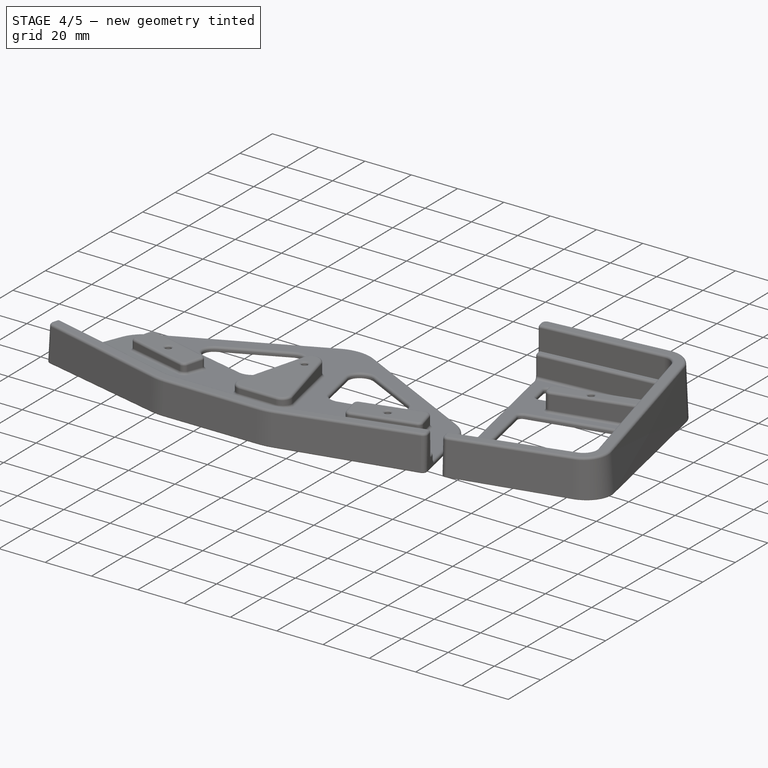
[diagram: stage 4 of 5 — iso view after this stage's code; geometry added in this stage tinted green]
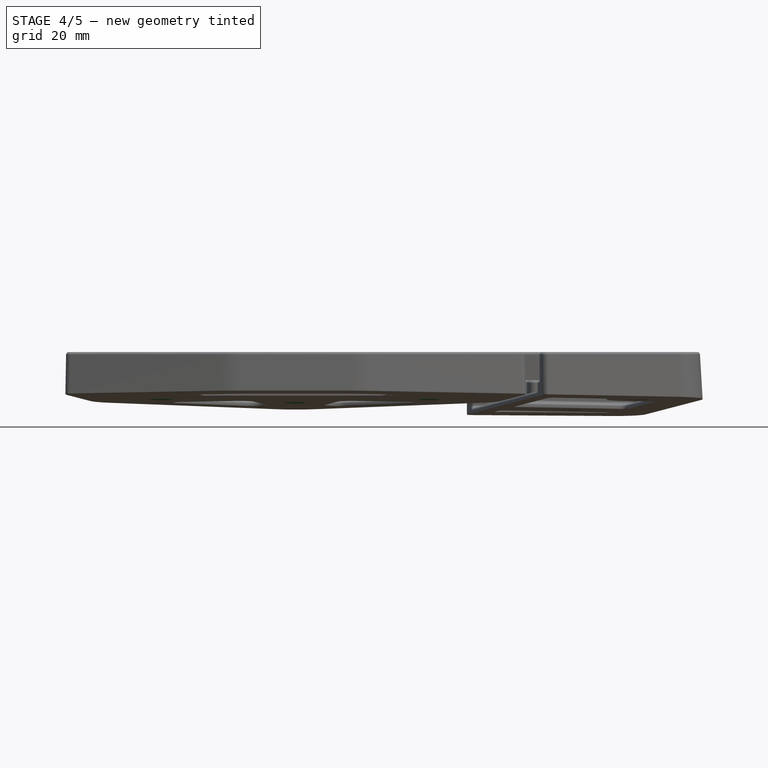
[diagram: stage 4 of 5 — front view after this stage's code; geometry added in this stage tinted green]
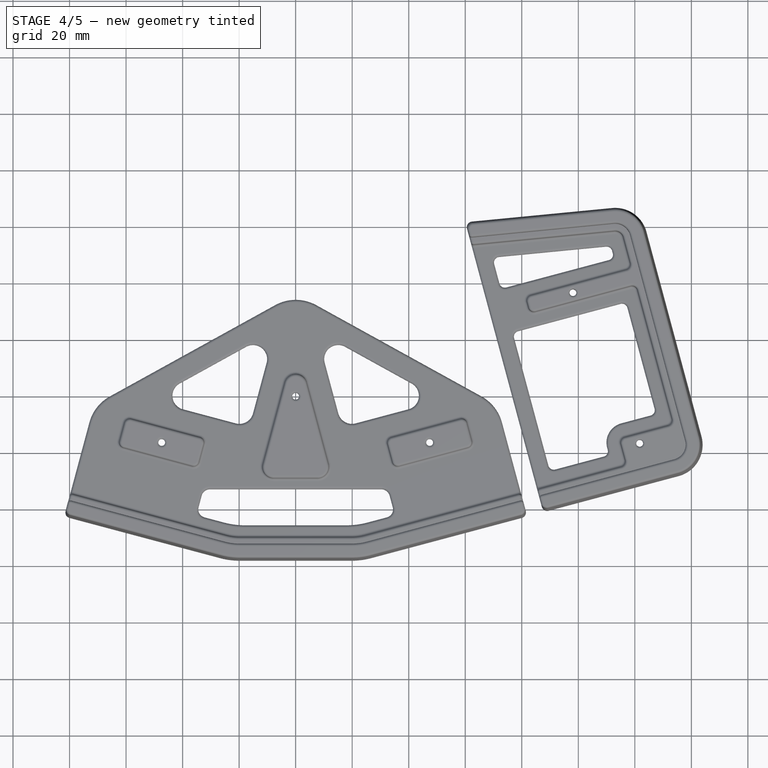
[diagram: stage 4 of 5 — top view after this stage's code; geometry added in this stage tinted green]
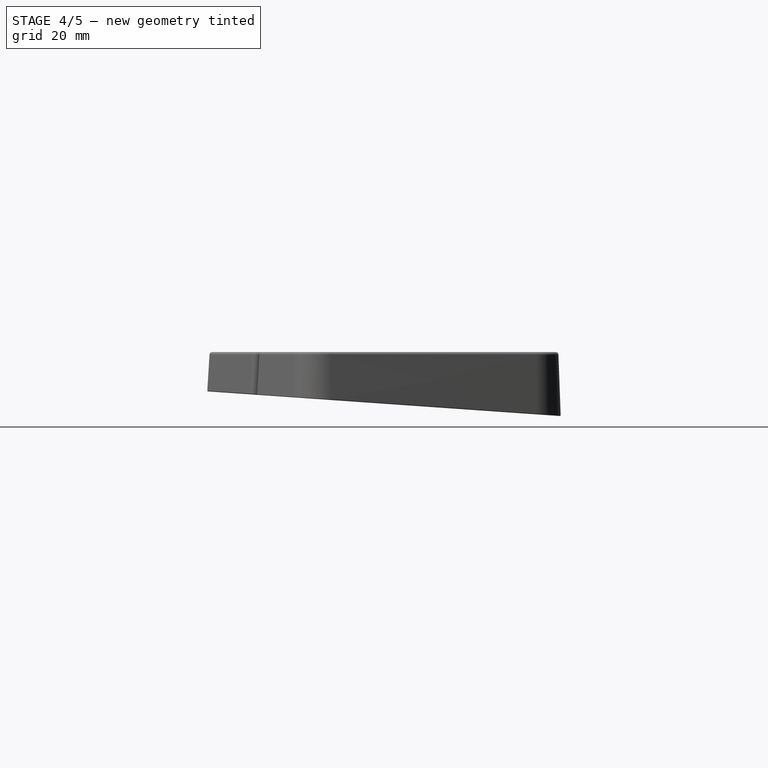
[diagram: stage 4 of 5 — right view after this stage's code; geometry added in this stage tinted green]
FEATURE [PartDesign::Fillet] Fillet
  Base = -> Pocket002 [Face41,Edge155,Edge192,Edge217,Edge218,Edge219,Edge204,Edge178,Edge71,Edge72,Face40,Edge73,Edge46,Edge45,Edge44]
  BaseFeature = -> Pocket002
  Radius = 1
  SupportTransform = false
  UseAllEdges = false
FEATURE [Sketcher::SketchObject] Sketch005
  ExternalGeometry = -> [Sketch003]
  FullyConstrained = true
  MapMode = 5
  Placement = pos=(0,0,8) rot=(0,0,1;0rad)
  Support = -> [Pocket]
  sketch-geometry (3):
    g0: Circle CenterX=0 CenterY=0 CenterZ=0 NormalX=0 NormalY=0 NormalZ=1 AngleXU=0 Radius=1.1
    g1: Circle CenterX=47.4001 CenterY=-16.3717 CenterZ=0 NormalX=0 NormalY=0 NormalZ=1 AngleXU=0 Radius=1.1
    g2: Circle CenterX=-47.4001 CenterY=-16.3717 CenterZ=0 NormalX=0 NormalY=0 NormalZ=1 AngleXU=0 Radius=1.1
  constraints (6):
    c: Coincident(g0,g-4)
    c: Coincident(g1,g-3)
    c: Coincident(g2,g-5)
    c: Equal(g2,g0)
    c: Equal(g0,g1)
    c: Diameter(g0) = 2.2
FEATURE [PartDesign::Hole] Hole
  BaseFeature = -> Fillet
  CustomThreadClearance = 0
  Depth = 380.661
  DepthType = 1
  Diameter = 2.42
  DrillForDepth = false
  DrillPoint = 1
  DrillPointAngle = 118
  HoleCutCountersinkAngle = 90
  HoleCutCustomValues = false
  HoleCutDepth = 0
  HoleCutDiameter = 6.1
  HoleCutType = 0
  ModelThread = false
  Profile = -> Sketch005
  Tapered = false
  TaperedAngle = 90
  ThreadClass = 0
  ThreadDepth = 380.661
  ThreadDepthType = 0
  ThreadDirection = 0
  ThreadFit = 0
  ThreadSize = 7
  ThreadType = 1
  Threaded = false
  UseCustomThreadClearance = false
FEATURE [PartDesign::Chamfer] Chamfer
  Angle = 45
  Base = -> Hole [Edge42,Edge43,Edge23]
  BaseFeature = -> Hole
  ChamferType = 0
  FlipDirection = false
  Size = 3
  Size2 = 1
  SupportTransform = false
  UseAllEdges = false
FEATURE [PartDesign::Fillet] Fillet001
  Base = -> Chamfer [Face1]
  BaseFeature = -> Chamfer
  Radius = 0.4
  SupportTransform = false
  UseAllEdges = false
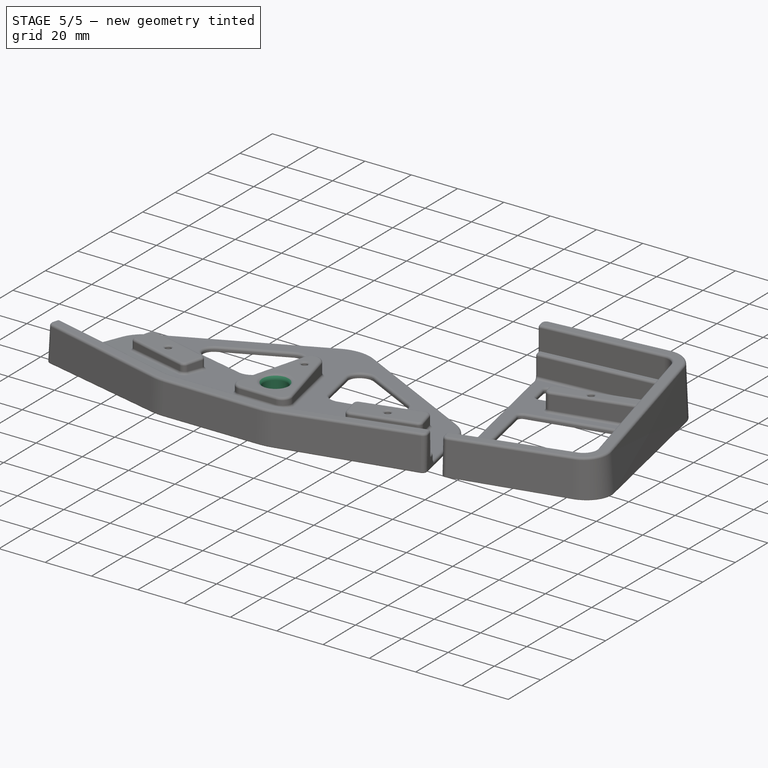
[diagram: stage 5 of 5 — iso view after this stage's code; geometry added in this stage tinted green]
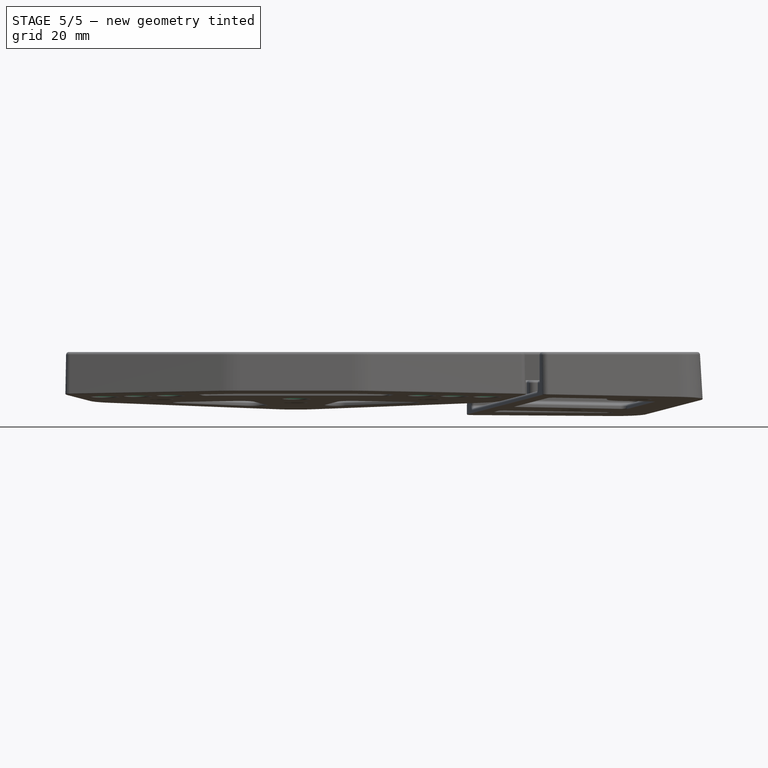
[diagram: stage 5 of 5 — front view after this stage's code; geometry added in this stage tinted green]
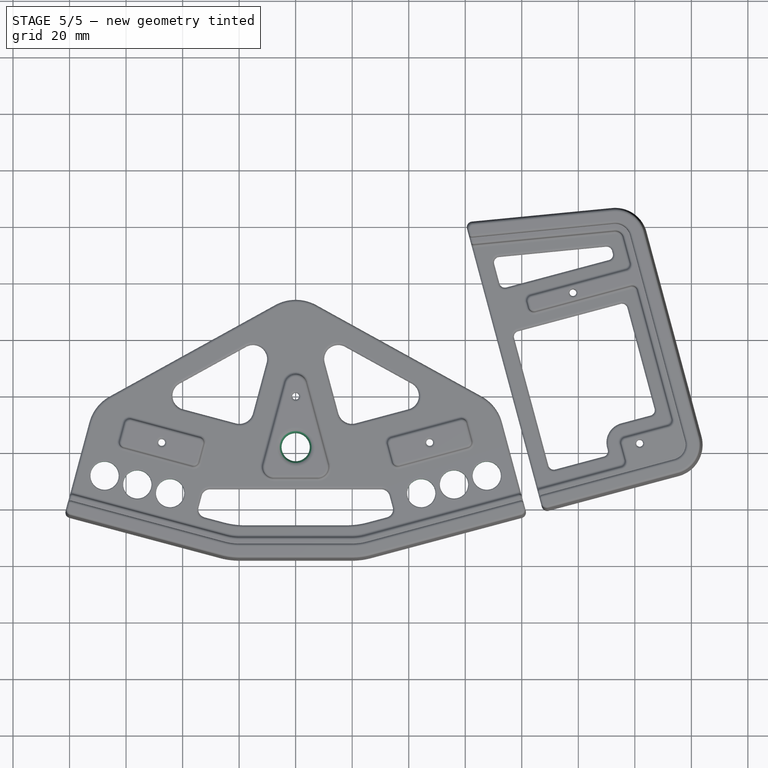
[diagram: stage 5 of 5 — top view after this stage's code; geometry added in this stage tinted green]
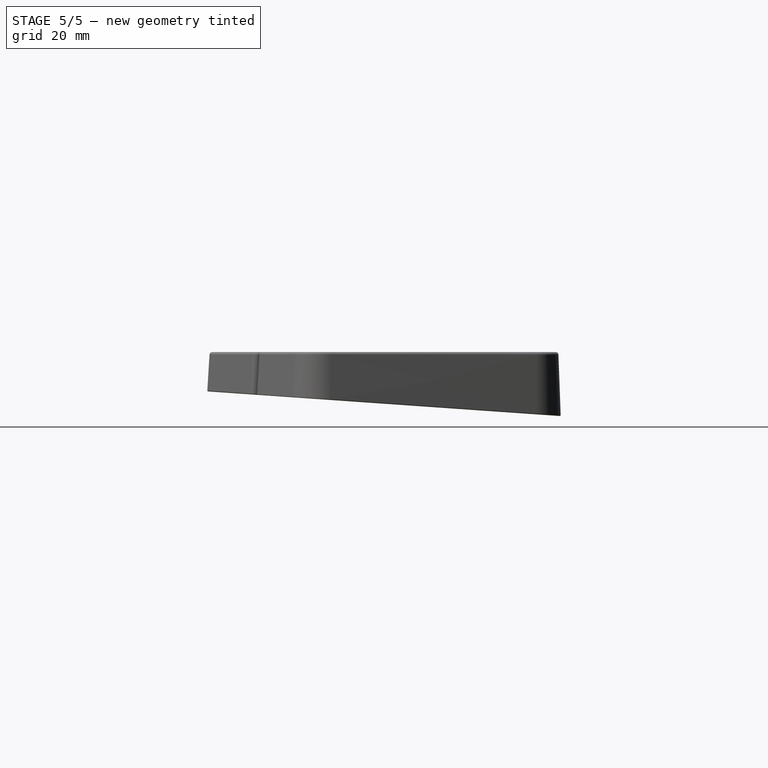
[diagram: stage 5 of 5 — right view after this stage's code; geometry added in this stage tinted green]
FEATURE [Sketcher::SketchObject] Sketch006
  ExternalGeometry = -> [Fillet001]
  FullyConstrained = true
  MapMode = 5
  Placement = pos=(0,0,8) rot=(0,0,1;0rad)
  Support = -> [Fillet001]
  sketch-geometry (1):
    g0: Circle CenterX=0 CenterY=-18 CenterZ=0 NormalX=0 NormalY=0 NormalZ=1 AngleXU=0 Radius=5
  constraints (3):
    c: PointOnObject(g0,g-2)
    c: DistanceY(g-3,g0) = 10
    c: Diameter(g0) = 10
FEATURE [PartDesign::Pocket] Pocket003
  BaseFeature = -> Fillet001
  Direction = (0,0,-1)
  Length = 5
  Length2 = 5
  Profile = -> Sketch006
  ReferenceAxis = -> Sketch006 [N_Axis]
  Type = 1
FEATURE [PartDesign::Fillet] Fillet002
  Base = -> Pocket003 [Edge97]
  BaseFeature = -> Pocket003
  Radius = 2
  SupportTransform = false
  UseAllEdges = false
FEATURE [Sketcher::SketchObject] Sketch007
  ExternalGeometry = -> [Fillet002]
  FullyConstrained = true
  MapMode = 5
  Placement = pos=(0,0.139173,1.99027) rot=(-1,0,0;0.069813rad)
  Support = -> [Fillet002]
  sketch-geometry (8):
    g0: GeomPoint X=34.765 Y=-37.0251 Z=0
    g1: LineSegment StartX=34.765 StartY=-37.0251 StartZ=0 EndX=83.0613 EndY=-24.0842 EndZ=0
    g2: Circle CenterX=44.4243 CenterY=-34.4369 CenterZ=0 NormalX=0 NormalY=0 NormalZ=1 AngleXU=0 Radius=5
    g3: Circle CenterX=56.0154 CenterY=-31.3311 CenterZ=0 NormalX=0 NormalY=0 NormalZ=1 AngleXU=0 Radius=5
    g4: Circle CenterX=67.6065 CenterY=-28.2253 CenterZ=0 NormalX=0 NormalY=0 NormalZ=1 AngleXU=0 Radius=5
    g5: Circle CenterX=-44.4243 CenterY=-34.4369 CenterZ=0 NormalX=0 NormalY=0 NormalZ=1 AngleXU=0 Radius=5
    g6: Circle CenterX=-56.0154 CenterY=-31.3311 CenterZ=0 NormalX=0 NormalY=0 NormalZ=1 AngleXU=0 Radius=5
    g7: Circle CenterX=-67.6065 CenterY=-28.2253 CenterZ=0 NormalX=0 NormalY=0 NormalZ=1 AngleXU=0 Radius=5
  constraints (19):
    c: Symmetric(g-3,g-3,g0)
    c: Coincident(g1,g0)
    c: Perpendicular(g-3,g1)
    c: Distance(g1) = 50
    c: PointOnObject(g2,g1)
    c: PointOnObject(g3,g1)
    c: PointOnObject(g4,g1)
    c: Equal(g2,g3)
    c: Equal(g3,g4)
    c: Diameter(g3) = 10
    c: Distance(g0,g2) = 10
    c: Distance(g3,g2) = 12
    c: Distance(g3,g4) = 12
    c: Symmetric(g2,g5,g-2)
    c: Symmetric(g6,g3,g-2)
    c: Symmetric(g7,g4,g-2)
    c: Equal(g4,g5)
    c: Equal(g5,g6)
    c: Equal(g6,g7)
FEATURE [PartDesign::Pocket] Pocket004
  BaseFeature = -> Fillet002
  Direction = (0,-0.0697565,-0.997564)
  Length = 5
  Length2 = 5
  Profile = -> Sketch007
  ReferenceAxis = -> Sketch007 [N_Axis]
  Type = 1
FEATURE [PartDesign::Fillet] Fillet003
  Base = -> Pocket004 [Edge92,Edge88,Edge90,Edge132,Edge134,Edge138,Edge45,Edge43,Edge42,Edge3,Edge21,Edge20,Edge22]
  BaseFeature = -> Pocket004
  Radius = 0.5
  SupportTransform = false
  UseAllEdges = false
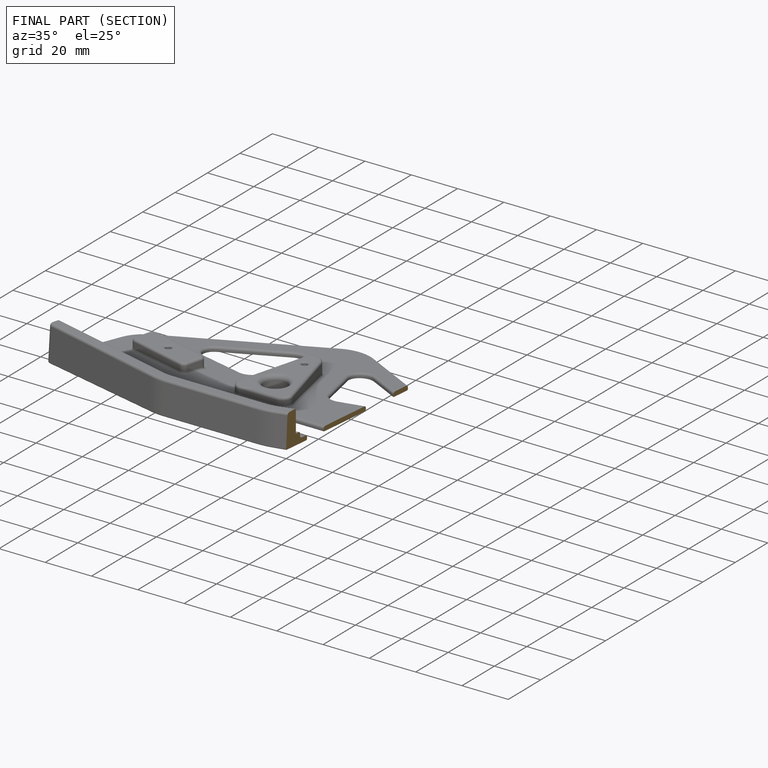
[diagram: finished part — half-section view (interior)]
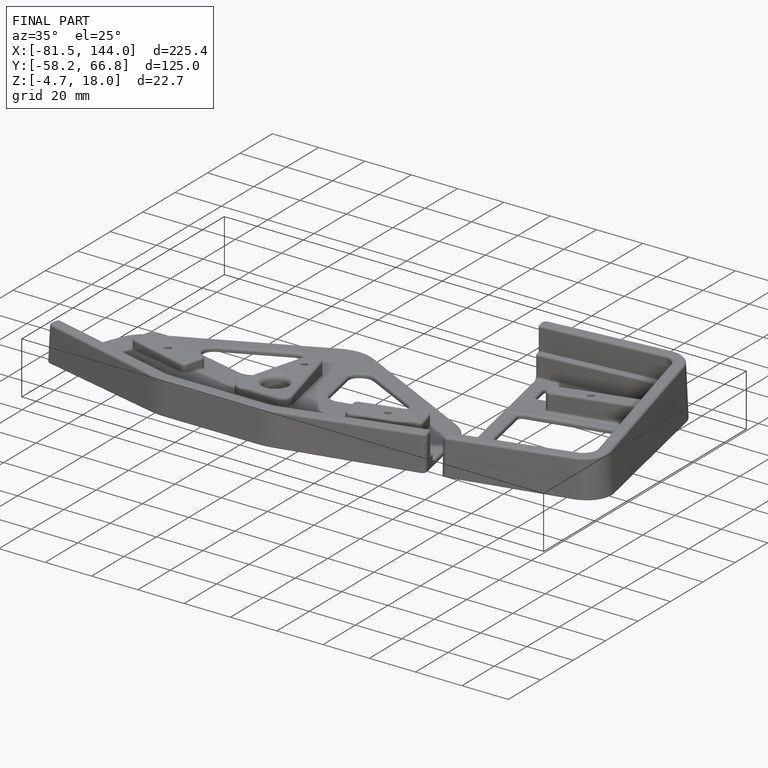
[diagram: finished part — iso view with bounding-box wireframe]
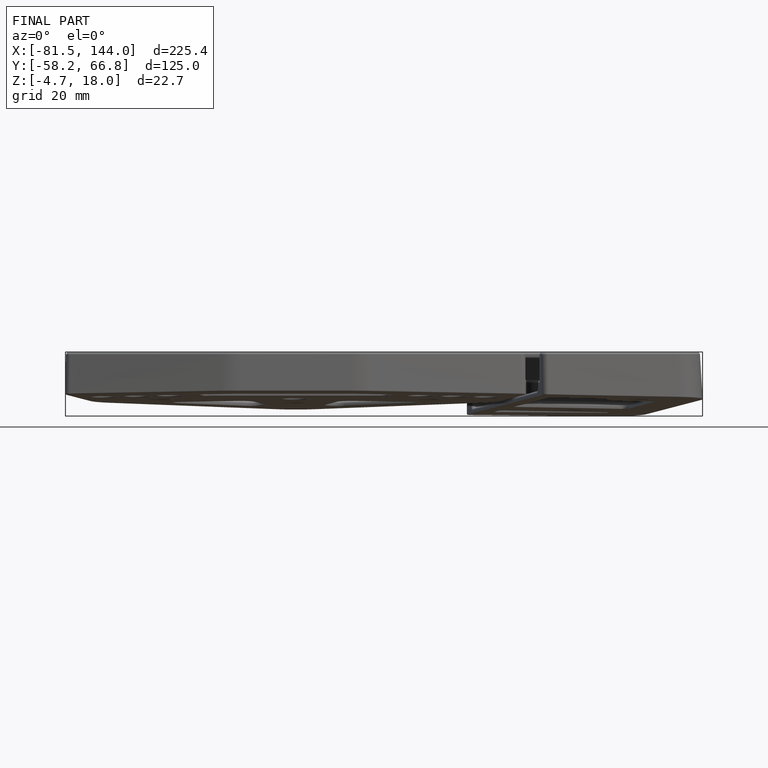
[diagram: finished part — front view with bounding-box wireframe]
